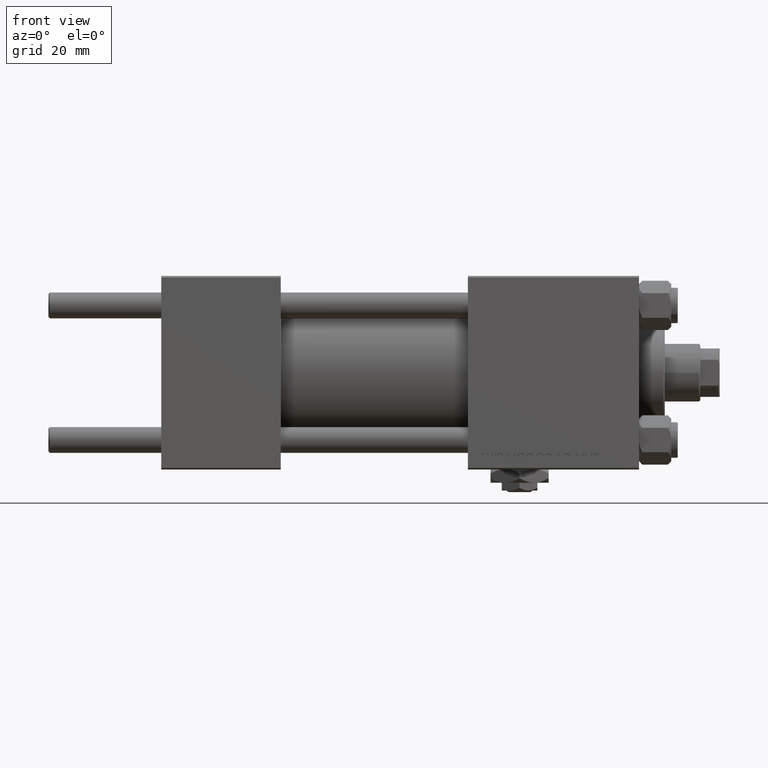
[diagram: clean part render]
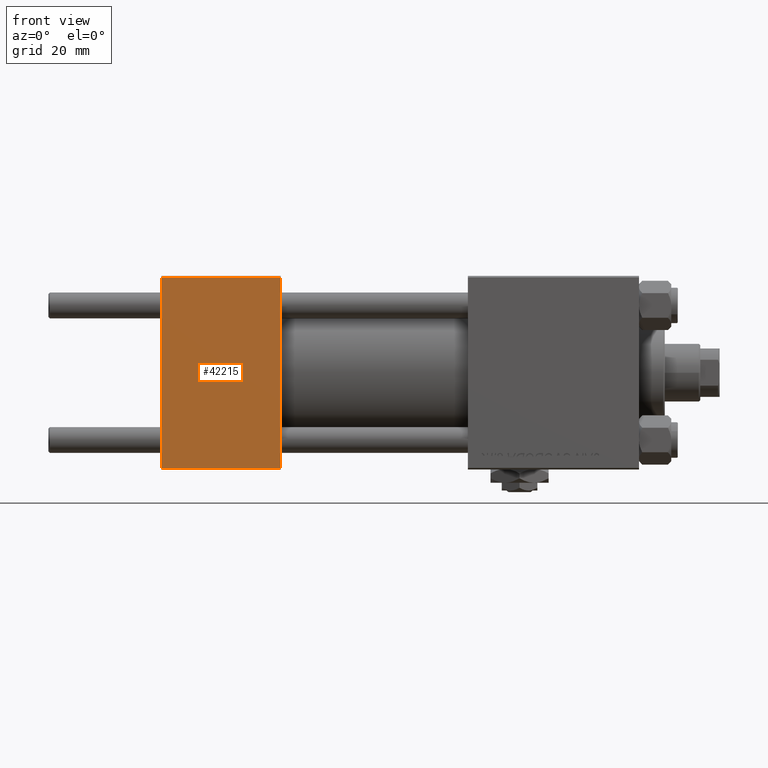
[diagram: same view with one face highlighted and labeled with its STEP entity id]
A machine part, front view. The second image highlights one B-rep face of the part: STEP entity #42215.
In plain terms, the highlighted planar face has unit normal (0, 1, 0).
Its self-contained STEP definition (entity closure, byte-faithful):
#263 = ORIENTED_EDGE ( 'NONE', *, *, #4209, .T. ) ;
#1009 = FACE_OUTER_BOUND ( 'NONE', #33735, .T. ) ;
#4209 = EDGE_CURVE ( 'NONE', #45488, #7829, #24471, .T. ) ;
#4424 = CARTESIAN_POINT ( 'NONE',  ( 37.00000000000000000, -30.00000000000000000, 29.49999999999999289 ) ) ;
#7829 = VERTEX_POINT ( 'NONE', #23455 ) ;
#9078 = CARTESIAN_POINT ( 'NONE',  ( 0.000000000000000000, -30.00000000000000000, 29.49999999999999289 ) ) ;
#9183 = ORIENTED_EDGE ( 'NONE', *, *, #15729, .T. ) ;
#10147 = CARTESIAN_POINT ( 'NONE',  ( 37.00000000000000000, -30.00000000000000000, 29.99999999999999289 ) ) ;
#13881 = DIRECTION ( 'NONE',  ( 0.000000000000000000, 0.000000000000000000, -1.000000000000000000 ) ) ;
#15400 = LINE ( 'NONE', #4424, #39112 ) ;
#15729 = EDGE_CURVE ( 'NONE', #17718, #45488, #34970, .T. ) ;
#16650 = DIRECTION ( 'NONE',  ( 1.000000000000000000, 0.000000000000000000, 0.000000000000000000 ) ) ;
#16919 = DIRECTION ( 'NONE',  ( 0.000000000000000000, -0.000000000000000000, 1.000000000000000000 ) ) ;
#17718 = VERTEX_POINT ( 'NONE', #9078 ) ;
#21353 = CARTESIAN_POINT ( 'NONE',  ( 37.00000000000000000, -30.00000000000000000, 29.99999999999999289 ) ) ;
#23169 = LINE ( 'NONE', #10147, #23213 ) ;
#23213 = VECTOR ( 'NONE', #50048, 1000.000000000000000 ) ;
#23455 = CARTESIAN_POINT ( 'NONE',  ( 37.00000000000000000, -30.00000000000000000, -29.50000000000001776 ) ) ;
#24174 = VECTOR ( 'NONE', #16650, 1000.000000000000000 ) ;
#24471 = LINE ( 'NONE', #47959, #24174 ) ;
#28295 = AXIS2_PLACEMENT_3D ( 'NONE', #21353, #36212, #16919 ) ;
#28873 = CARTESIAN_POINT ( 'NONE',  ( 37.00000000000000000, -30.00000000000000000, 29.49999999999999289 ) ) ;
#31807 = DIRECTION ( 'NONE',  ( -1.000000000000000000, 0.000000000000000000, 0.000000000000000000 ) ) ;
#33735 = EDGE_LOOP ( 'NONE', ( #9183, #263, #51208, #45780 ) ) ;
#34970 = LINE ( 'NONE', #45695, #36912 ) ;
#35032 = EDGE_CURVE ( 'NONE', #45549, #7829, #23169, .T. ) ;
#36212 = DIRECTION ( 'NONE',  ( -0.000000000000000000, 1.000000000000000000, 0.000000000000000000 ) ) ;
#36758 = EDGE_CURVE ( 'NONE', #45549, #17718, #15400, .T. ) ;
#36912 = VECTOR ( 'NONE', #13881, 1000.000000000000000 ) ;
#37245 = PLANE ( 'NONE',  #28295 ) ;
#37671 = CARTESIAN_POINT ( 'NONE',  ( 0.000000000000000000, -30.00000000000000000, -29.50000000000001776 ) ) ;
#39112 = VECTOR ( 'NONE', #31807, 1000.000000000000000 ) ;
#42215 = ADVANCED_FACE ( 'NONE', ( #1009 ), #37245, .F. ) ;
#45488 = VERTEX_POINT ( 'NONE', #37671 ) ;
#45549 = VERTEX_POINT ( 'NONE', #28873 ) ;
#45695 = CARTESIAN_POINT ( 'NONE',  ( 0.000000000000000000, -30.00000000000000000, 29.99999999999999289 ) ) ;
#45780 = ORIENTED_EDGE ( 'NONE', *, *, #36758, .T. ) ;
#47959 = CARTESIAN_POINT ( 'NONE',  ( 37.00000000000000000, -30.00000000000000000, -29.50000000000001776 ) ) ;
#50048 = DIRECTION ( 'NONE',  ( 0.000000000000000000, 0.000000000000000000, -1.000000000000000000 ) ) ;
#51208 = ORIENTED_EDGE ( 'NONE', *, *, #35032, .F. ) ;